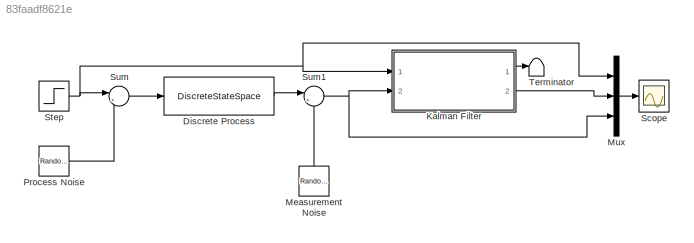
MODEL slx_83faadf8621e
KIND model
CONFIG AbsTol = auto
CONFIG FixedStep = auto
CONFIG MaxStep = auto
CONFIG MinStep = auto
CONFIG RelTol = 1e-3
CONFIG SampleTimeConstraint = Unconstrained
CONFIG Solver = VariableStepAuto
CONFIG SolverMode = Auto
CONFIG SolverName = VariableStepAuto
CONFIG StartTime = 0.0
CONFIG StopTime = 10.0
BLOCK [DiscreteStateSpace] Discrete Process
  A = 0.914
  B = 0.25
  C = 0.344
  D = 0
  SampleTime = 0.01
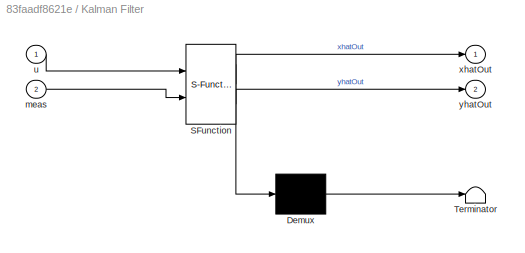
BLOCK [SubSystem] Kalman Filter
  ErrorFcn = Stateflow.Translate.translate
  PermitHierarchicalResolution = ExplicitOnly
  Ports = [2, 2]
  RequestExecContextInheritance = off
  SFBlockType = MATLAB Function
  TreatAsAtomicUnit = on
  Variant = off
BLOCK [Demux] Kalman Filter/ Demux 
  Outputs = 1
  Ports = [1, 1]
BLOCK [S-Function] Kalman Filter/ SFunction 
  EnableBusSupport = on
  FunctionName = sf_sfun
  PortCounts = [2 3]
  Ports = [2, 3]
  SFunctionDeploymentMode = off
  Tag = Stateflow S-Function KalmanFilter 2
BLOCK [Terminator] Kalman Filter/ Terminator 
BLOCK [Inport] Kalman Filter/meas
  IconDisplay = Port number
  Port = 2
BLOCK [Inport] Kalman Filter/u
  IconDisplay = Port number
BLOCK [Outport] Kalman Filter/xhatOut
  IconDisplay = Port number
BLOCK [Outport] Kalman Filter/yhatOut
  IconDisplay = Port number
  Port = 2
BLOCK [RandomNumber] Measurement Noise
  SampleTime = 0.01
  Variance = 0.1
BLOCK [Mux] Mux
  DisplayOption = bar
  Inputs = 3
  Ports = [3, 1]
BLOCK [RandomNumber] Process Noise
  SampleTime = 0.01
  Variance = 0.01
BLOCK [Scope] Scope
  Ports = [1]
  ScopeSpecificationString = Simulink.scopes.TimeScopeBlockCfg('CurrentConfiguration', extmgr.ConfigurationSet(extmgr.Configuration('Core','General UI',true),extmgr.Configuration('Core','Source UI',true),extmgr.Configuration('Sources','WiredSimulink',true),extmgr.Configuration('Visuals','Time Domain',true,'SerializedDisplays',{struct('MinYLimReal','-1.11895','MaxYLimReal','2.34749','YLabelReal','','MinYLimMag','0.00000','MaxY...<+1399ch>
BLOCK [Step] Step
  SampleTime = 0
BLOCK [Sum] Sum
  IconShape = round
  InputSameDT = off
  Inputs = |++
  OutDataTypeStr = Inherit: Inherit via internal rule
  Ports = [2, 1]
  SaturateOnIntegerOverflow = off
BLOCK [Sum] Sum1
  IconShape = round
  InputSameDT = off
  Inputs = |++
  OutDataTypeStr = Inherit: Inherit via internal rule
  Ports = [2, 1]
  SaturateOnIntegerOverflow = off
BLOCK [Terminator] Terminator
LINE Discrete Process:1 -> Sum1:1
LINE Kalman Filter:1 -> Terminator:1
LINE Kalman Filter:2 -> Mux:2
LINE Measurement Noise:1 -> Sum1:2
LINE Mux:1 -> Scope:1
LINE Process Noise:1 -> Sum:2
NET Step:1 -> Kalman Filter:1, Mux:1, Sum:1
NET Sum1:1 -> Kalman Filter:2, Mux:3
LINE Sum:1 -> Discrete Process:1
note: NET lines group one-source signal fan-out (src -> all destinations, sorted); 1:1 wires keep LINE
CHART Kalman Filter states=1 transitions=1
  STATE_LABEL 'eML_blk_kernel()'
  STATE_LABEL 'SCRIPT:\nfunction [xhatOut, yhatOut] = KALMAN(u,meas)\n% This Embedded MATLAB Function implements a very simple Kalman filter.\n%\n% It implements a Kalman filter for estimating both the state and output\n% of a linear, discrete-time, time-invariant, system given by the following\n% state-space equations:\n%\n% x(k) = 0.914 x(k-1) + 0.25 u(k) + w(k)\n% y(k) = 0.344 x(k-1) + v(k)\n%\n% where w(k) has a varian...<+728ch>'
